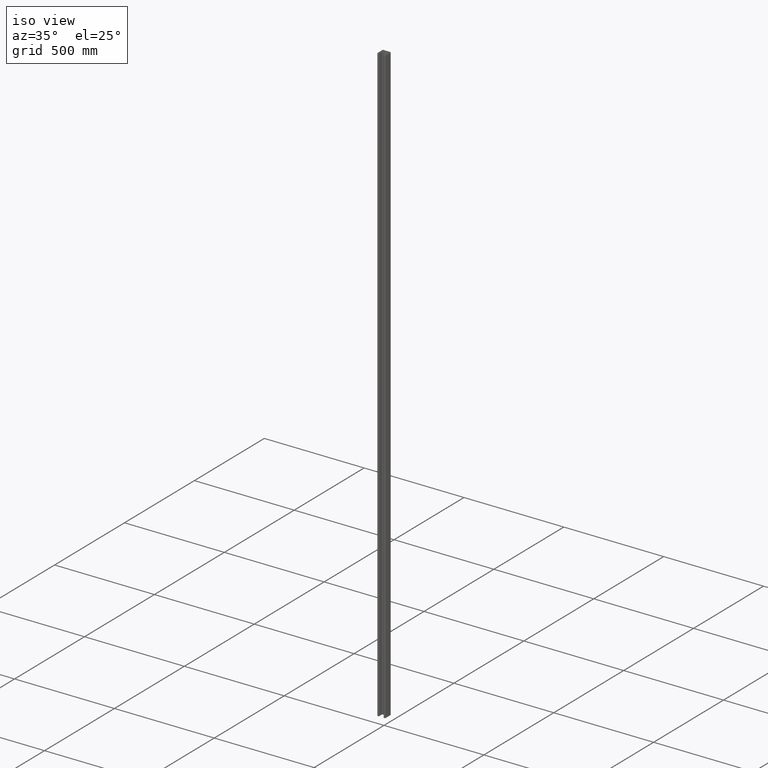
[diagram: clean part render]
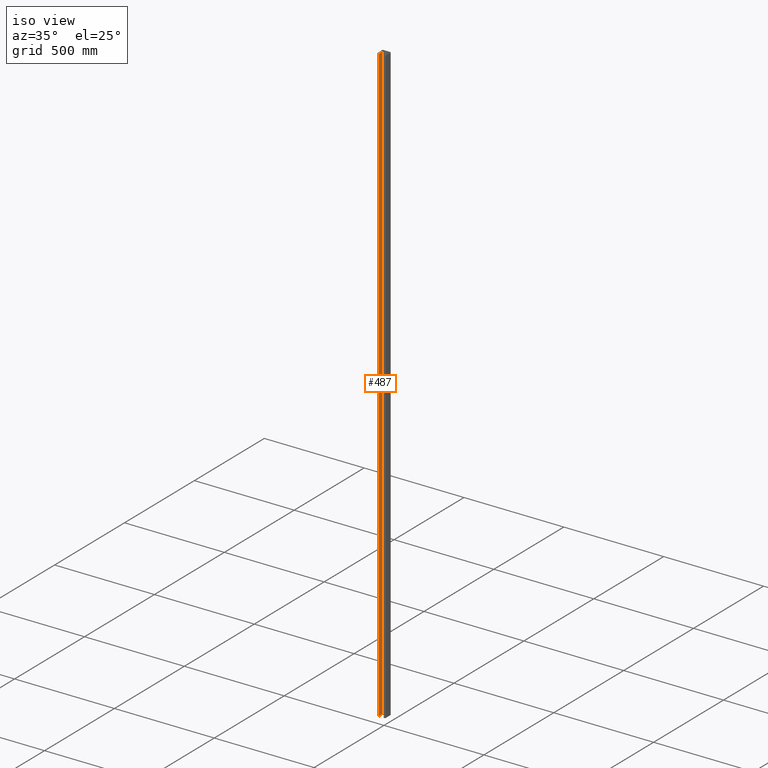
[diagram: same view with one face highlighted and labeled with its STEP entity id]
A machine part, iso view. The second image highlights one B-rep face of the part: STEP entity #487.
In plain terms, the highlighted planar face has unit normal (-1, 0, 0).
Its self-contained STEP definition (entity closure, byte-faithful):
#149 = EDGE_CURVE ( 'NONE', #2861, #15610, #4508, .T. ) ;
#487 = ADVANCED_FACE ( 'NONE', ( #12727 ), #12468, .F. ) ;
#729 = CARTESIAN_POINT ( 'NONE',  ( -12.00000000000000355, 3.500000000000006661, 1500.000000000000000 ) ) ;
#1111 = CARTESIAN_POINT ( 'NONE',  ( -12.00000000000000533, -17.99999999999999645, -1500.000000000000000 ) ) ;
#1369 = EDGE_CURVE ( 'NONE', #2861, #4973, #9716, .T. ) ;
#2057 = CARTESIAN_POINT ( 'NONE',  ( -12.00000000000000533, -17.99999999999999645, 1500.000000000000000 ) ) ;
#2223 = ORIENTED_EDGE ( 'NONE', *, *, #3393, .T. ) ;
#2382 = DIRECTION ( 'NONE',  ( 8.068481283613055794E-17, 1.000000000000000000, 0.000000000000000000 ) ) ;
#2861 = VERTEX_POINT ( 'NONE', #8503 ) ;
#3393 = EDGE_CURVE ( 'NONE', #15610, #15814, #13408, .T. ) ;
#4508 = LINE ( 'NONE', #5938, #14221 ) ;
#4831 = VECTOR ( 'NONE', #5892, 1000.000000000000000 ) ;
#4973 = VERTEX_POINT ( 'NONE', #10812 ) ;
#5892 = DIRECTION ( 'NONE',  ( -0.000000000000000000, -0.000000000000000000, -1.000000000000000000 ) ) ;
#5915 = DIRECTION ( 'NONE',  ( -1.000000000000000000, 8.068481283613055794E-17, 0.000000000000000000 ) ) ;
#5938 = CARTESIAN_POINT ( 'NONE',  ( -12.00000000000000533, -17.99999999999999645, 1500.000000000000000 ) ) ;
#8372 = CARTESIAN_POINT ( 'NONE',  ( -12.00000000000000355, 3.500000000000006661, -1500.000000000000000 ) ) ;
#8503 = CARTESIAN_POINT ( 'NONE',  ( -12.00000000000000533, -17.99999999999999645, 1500.000000000000000 ) ) ;
#8595 = ORIENTED_EDGE ( 'NONE', *, *, #149, .T. ) ;
#9716 = LINE ( 'NONE', #11287, #11337 ) ;
#10601 = CARTESIAN_POINT ( 'NONE',  ( -12.00000000000000533, -17.99999999999999645, -1500.000000000000000 ) ) ;
#10655 = DIRECTION ( 'NONE',  ( 8.068481283613055794E-17, 1.000000000000000000, 0.000000000000000000 ) ) ;
#10812 = CARTESIAN_POINT ( 'NONE',  ( -12.00000000000000355, 3.500000000000006661, 1500.000000000000000 ) ) ;
#11287 = CARTESIAN_POINT ( 'NONE',  ( -12.00000000000000533, -17.99999999999999645, 1500.000000000000000 ) ) ;
#11337 = VECTOR ( 'NONE', #2382, 1000.000000000000000 ) ;
#12070 = DIRECTION ( 'NONE',  ( -8.068481283613055794E-17, -1.000000000000000000, 0.000000000000000000 ) ) ;
#12208 = DIRECTION ( 'NONE',  ( -0.000000000000000000, -0.000000000000000000, -1.000000000000000000 ) ) ;
#12468 = PLANE ( 'NONE',  #13210 ) ;
#12617 = VECTOR ( 'NONE', #10655, 1000.000000000000000 ) ;
#12727 = FACE_OUTER_BOUND ( 'NONE', #15023, .T. ) ;
#13210 = AXIS2_PLACEMENT_3D ( 'NONE', #2057, #5915, #12070 ) ;
#13408 = LINE ( 'NONE', #10601, #12617 ) ;
#13513 = LINE ( 'NONE', #729, #4831 ) ;
#13800 = EDGE_CURVE ( 'NONE', #4973, #15814, #13513, .T. ) ;
#14221 = VECTOR ( 'NONE', #12208, 1000.000000000000000 ) ;
#14949 = ORIENTED_EDGE ( 'NONE', *, *, #1369, .F. ) ;
#15023 = EDGE_LOOP ( 'NONE', ( #2223, #15674, #14949, #8595 ) ) ;
#15610 = VERTEX_POINT ( 'NONE', #1111 ) ;
#15674 = ORIENTED_EDGE ( 'NONE', *, *, #13800, .F. ) ;
#15814 = VERTEX_POINT ( 'NONE', #8372 ) ;